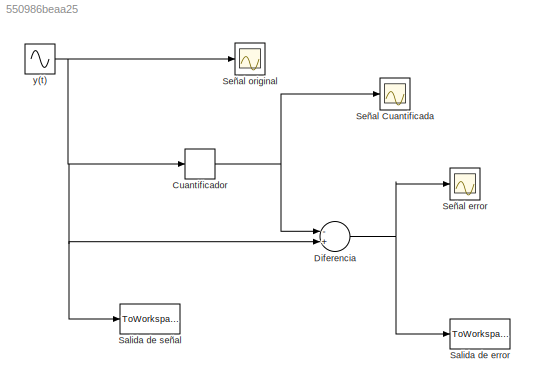
MODEL slx_550986beaa25
KIND model
BLOCK [Quantizer] Cuantificador
BLOCK [Sum] Diferencia
  InputSameDT = off
  Inputs = -+
  OutDataTypeStr = Inherit: Inherit via internal rule
  Ports = [2, 1]
  SaturateOnIntegerOverflow = off
BLOCK [ToWorkspace] Salida de error
  MaxDataPoints = inf
  Ports = [1]
  SampleTime = -1
  VariableName = Error
BLOCK [ToWorkspace] Salida de señal
  MaxDataPoints = inf
  Ports = [1]
  SampleTime = -1
  VariableName = Signal
BLOCK [Scope] Señal Cuantificada
  DataFormat = StructureWithTime
  Floating = off
  NumInputPorts = 1
  Ports = [1]
  SampleTime = 0
  SaveName = ScopeData1
  ShowLegends = off
BLOCK [Scope] Señal error
  DataFormat = StructureWithTime
  Floating = off
  NumInputPorts = 1
  Ports = [1]
  SampleTime = 0
  SaveName = ScopeData2
  ShowLegends = off
BLOCK [Scope] Señal original
  DataFormat = StructureWithTime
  Floating = off
  NumInputPorts = 1
  Ports = [1]
  SampleTime = 0
  ShowLegends = off
BLOCK [Sin] y(t)
  Ports = [0, 1]
  SampleTime = 0
NET Cuantificador:1 -> Diferencia:1, Señal Cuantificada:1
NET Diferencia:1 -> Salida de error:1, Señal error:1
NET y(t):1 -> Cuantificador:1, Diferencia:2, Salida de señal:1, Señal original:1
note: NET lines group one-source signal fan-out (src -> all destinations, sorted); 1:1 wires keep LINE
